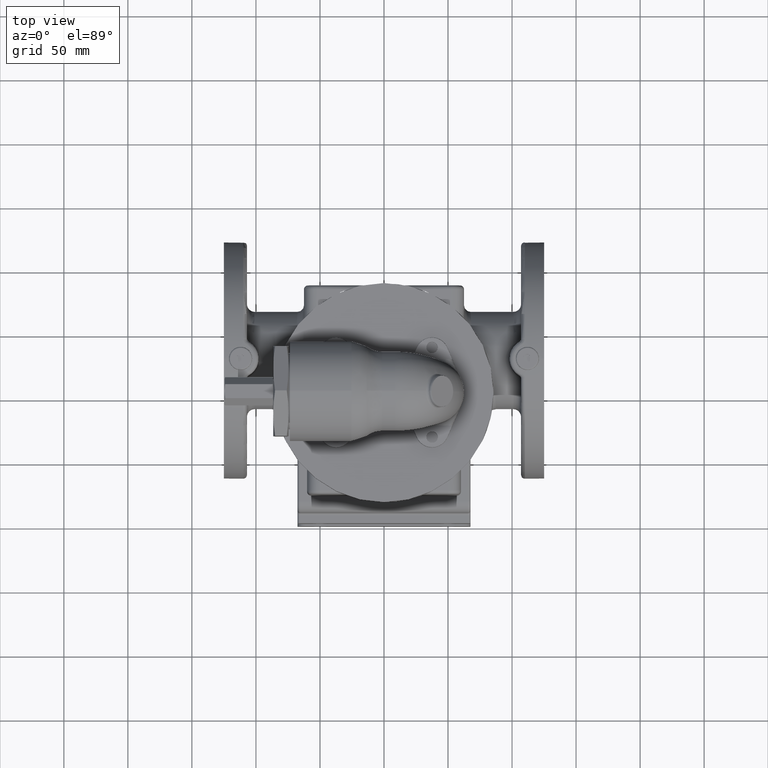
[diagram: clean part render]
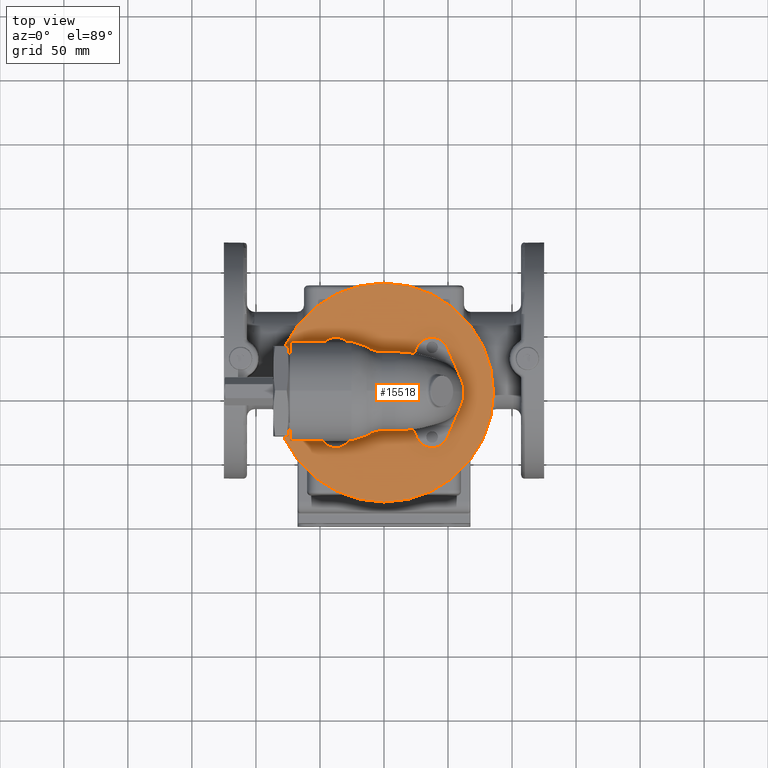
[diagram: same view with one face highlighted and labeled with its STEP entity id]
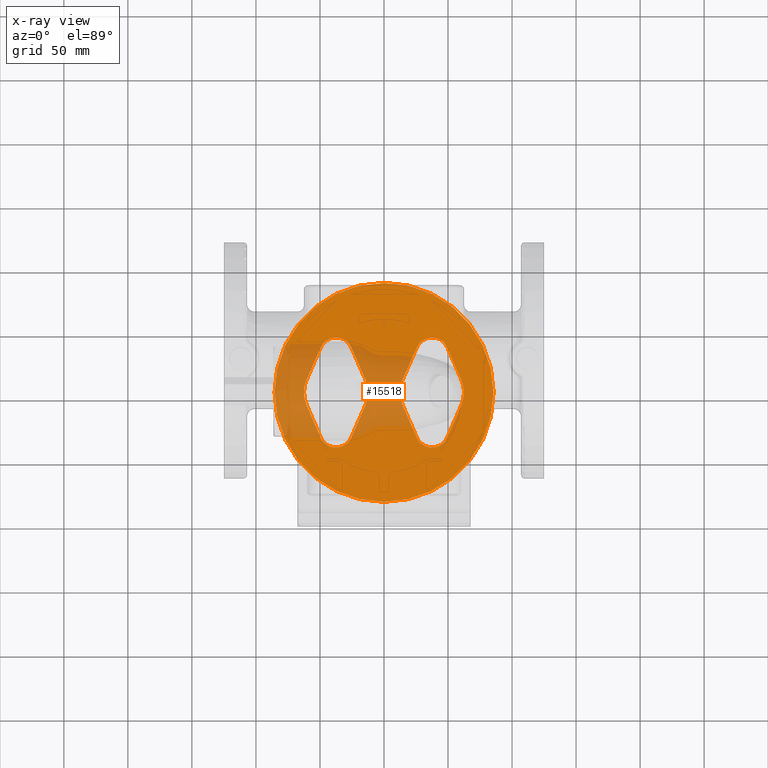
[diagram: x-ray of the same camera — body ghosted, the highlighted face saturated]
A machine part, top view. The second image highlights one B-rep face of the part: STEP entity #15518.
The next image is the same camera in x-ray: the body ghosted, the highlighted face saturated — about 23% of this face is hidden behind the body in this view.
In plain terms, the highlighted planar face has unit normal (0, 0, 1).
Its self-contained STEP definition (entity closure, byte-faithful):
#126=CARTESIAN_POINT('',(-1.957539742586E-14,3.863744265803E-14,1.07E2));
#127=DIRECTION('',(0.E0,0.E0,-1.E0));
#128=DIRECTION('',(0.E0,-1.E0,0.E0));
#129=AXIS2_PLACEMENT_3D('',#126,#127,#128);
#131=CARTESIAN_POINT('',(-1.957539742586E-14,3.863744265803E-14,1.07E2));
#132=DIRECTION('',(0.E0,0.E0,1.E0));
#133=DIRECTION('',(0.E0,-1.E0,0.E0));
#134=AXIS2_PLACEMENT_3D('',#131,#132,#133);
#136=DIRECTION('',(4.E-1,9.165151389912E-1,0.E0));
#137=VECTOR('',#136,2.749545416973E1);
#138=CARTESIAN_POINT('',(-2.558530319311E1,-3.52E1,1.07E2));
#139=LINE('',#138,#137);
#140=CARTESIAN_POINT('',(-3.75E1,3.981926292012E-14,1.07E2));
#141=DIRECTION('',(0.E0,0.E0,1.E0));
#142=DIRECTION('',(9.165151389912E-1,-4.E-1,0.E0));
#143=AXIS2_PLACEMENT_3D('',#140,#141,#142);
#145=DIRECTION('',(-4.E-1,9.165151389912E-1,0.E0));
#146=VECTOR('',#145,2.749545416973E1);
#147=CARTESIAN_POINT('',(-1.458712152522E1,1.E1,1.07E2));
#148=LINE('',#147,#146);
#149=CARTESIAN_POINT('',(-3.75E1,3.E1,1.07E2));
#150=DIRECTION('',(0.E0,0.E0,1.E0));
#151=DIRECTION('',(9.165151389912E-1,4.E-1,0.E0));
#152=AXIS2_PLACEMENT_3D('',#149,#150,#151);
#154=DIRECTION('',(-4.E-1,-9.165151389912E-1,0.E0));
#155=VECTOR('',#154,2.749545416974E1);
#156=CARTESIAN_POINT('',(-4.941469680689E1,3.52E1,1.07E2));
#157=LINE('',#156,#155);
#158=CARTESIAN_POINT('',(-3.75E1,3.981926292012E-14,1.07E2));
#159=DIRECTION('',(0.E0,0.E0,1.E0));
#160=DIRECTION('',(-9.165151389912E-1,4.E-1,0.E0));
#161=AXIS2_PLACEMENT_3D('',#158,#159,#160);
#163=DIRECTION('',(4.E-1,-9.165151389912E-1,0.E0));
#164=VECTOR('',#163,2.749545416974E1);
#165=CARTESIAN_POINT('',(-6.041287847478E1,-1.E1,1.07E2));
#166=LINE('',#165,#164);
#167=CARTESIAN_POINT('',(-3.75E1,-3.E1,1.07E2));
#168=DIRECTION('',(0.E0,0.E0,1.E0));
#169=DIRECTION('',(-9.165151389912E-1,-4.E-1,0.E0));
#170=AXIS2_PLACEMENT_3D('',#167,#168,#169);
#172=DIRECTION('',(4.E-1,9.165151389912E-1,0.E0));
#173=VECTOR('',#172,2.749545416973E1);
#174=CARTESIAN_POINT('',(4.941469680689E1,-3.52E1,1.07E2));
#175=LINE('',#174,#173);
#176=CARTESIAN_POINT('',(3.75E1,3.530035531168E-14,1.07E2));
#177=DIRECTION('',(0.E0,0.E0,1.E0));
#178=DIRECTION('',(9.165151389912E-1,-4.E-1,0.E0));
#179=AXIS2_PLACEMENT_3D('',#176,#177,#178);
#181=DIRECTION('',(-4.E-1,9.165151389912E-1,0.E0));
#182=VECTOR('',#181,2.749545416974E1);
#183=CARTESIAN_POINT('',(6.041287847478E1,1.E1,1.07E2));
#184=LINE('',#183,#182);
#185=CARTESIAN_POINT('',(3.75E1,3.E1,1.07E2));
#186=DIRECTION('',(0.E0,0.E0,1.E0));
#187=DIRECTION('',(9.165151389912E-1,4.E-1,0.E0));
#188=AXIS2_PLACEMENT_3D('',#185,#186,#187);
#190=DIRECTION('',(-4.E-1,-9.165151389912E-1,0.E0));
#191=VECTOR('',#190,2.749545416974E1);
#192=CARTESIAN_POINT('',(2.558530319311E1,3.52E1,1.07E2));
#193=LINE('',#192,#191);
#194=CARTESIAN_POINT('',(3.75E1,3.530035531168E-14,1.07E2));
#195=DIRECTION('',(0.E0,0.E0,1.E0));
#196=DIRECTION('',(-9.165151389912E-1,4.E-1,0.E0));
#197=AXIS2_PLACEMENT_3D('',#194,#195,#196);
#199=DIRECTION('',(4.E-1,-9.165151389912E-1,0.E0));
#200=VECTOR('',#199,2.749545416974E1);
#201=CARTESIAN_POINT('',(1.458712152522E1,-1.E1,1.07E2));
#202=LINE('',#201,#200);
#203=CARTESIAN_POINT('',(3.75E1,-3.E1,1.07E2));
#204=DIRECTION('',(0.E0,0.E0,1.E0));
#205=DIRECTION('',(-9.165151389912E-1,-4.E-1,0.E0));
#206=AXIS2_PLACEMENT_3D('',#203,#204,#205);
#13751=CARTESIAN_POINT('',(-1.957539742586E-14,-8.55E1,1.07E2));
#13752=CARTESIAN_POINT('',(0.E0,8.55E1,1.07E2));
#13753=VERTEX_POINT('',#13751);
#13754=VERTEX_POINT('',#13752);
#14031=CARTESIAN_POINT('',(-2.558530319311E1,-3.52E1,1.07E2));
#14032=CARTESIAN_POINT('',(-1.458712152522E1,-1.E1,1.07E2));
#14033=VERTEX_POINT('',#14031);
#14034=VERTEX_POINT('',#14032);
#14035=CARTESIAN_POINT('',(-6.041287847478E1,1.E1,1.07E2));
#14036=CARTESIAN_POINT('',(-6.041287847478E1,-1.E1,1.07E2));
#14037=VERTEX_POINT('',#14035);
#14038=VERTEX_POINT('',#14036);
#14039=CARTESIAN_POINT('',(-1.458712152522E1,1.E1,1.07E2));
#14040=VERTEX_POINT('',#14039);
#14041=CARTESIAN_POINT('',(-2.558530319311E1,3.52E1,1.07E2));
#14042=VERTEX_POINT('',#14041);
#14043=CARTESIAN_POINT('',(-4.941469680689E1,3.52E1,1.07E2));
#14044=VERTEX_POINT('',#14043);
#14045=CARTESIAN_POINT('',(-4.941469680689E1,-3.52E1,1.07E2));
#14046=VERTEX_POINT('',#14045);
#14047=CARTESIAN_POINT('',(4.941469680689E1,-3.52E1,1.07E2));
#14048=CARTESIAN_POINT('',(6.041287847478E1,-1.E1,1.07E2));
#14049=VERTEX_POINT('',#14047);
#14050=VERTEX_POINT('',#14048);
#14051=CARTESIAN_POINT('',(6.041287847478E1,1.E1,1.07E2));
#14052=VERTEX_POINT('',#14051);
#14053=CARTESIAN_POINT('',(1.458712152522E1,1.E1,1.07E2));
#14054=CARTESIAN_POINT('',(1.458712152522E1,-1.E1,1.07E2));
#14055=VERTEX_POINT('',#14053);
#14056=VERTEX_POINT('',#14054);
#14057=CARTESIAN_POINT('',(4.941469680689E1,3.52E1,1.07E2));
#14058=VERTEX_POINT('',#14057);
#14059=CARTESIAN_POINT('',(2.558530319311E1,3.52E1,1.07E2));
#14060=VERTEX_POINT('',#14059);
#14061=CARTESIAN_POINT('',(2.558530319311E1,-3.52E1,1.07E2));
#14062=VERTEX_POINT('',#14061);
#15472=CARTESIAN_POINT('',(-1.957539742586E-14,3.863744265803E-14,1.07E2));
#15473=DIRECTION('',(0.E0,0.E0,1.E0));
#15474=DIRECTION('',(0.E0,-1.E0,0.E0));
#15475=AXIS2_PLACEMENT_3D('',#15472,#15473,#15474);
#15476=PLANE('',#15475);
#15478=ORIENTED_EDGE('',*,*,#15477,.T.);
#15480=ORIENTED_EDGE('',*,*,#15479,.F.);
#15481=EDGE_LOOP('',(#15478,#15480));
#15482=FACE_OUTER_BOUND('',#15481,.F.);
#15484=ORIENTED_EDGE('',*,*,#15483,.T.);
#15486=ORIENTED_EDGE('',*,*,#15485,.T.);
#15488=ORIENTED_EDGE('',*,*,#15487,.T.);
#15490=ORIENTED_EDGE('',*,*,#15489,.T.);
#15492=ORIENTED_EDGE('',*,*,#15491,.T.);
#15494=ORIENTED_EDGE('',*,*,#15493,.T.);
#15496=ORIENTED_EDGE('',*,*,#15495,.T.);
#15497=ORIENTED_EDGE('',*,*,#15462,.T.);
#15498=EDGE_LOOP('',(#15484,#15486,#15488,#15490,#15492,#15494,#15496,#15497));
#15499=FACE_BOUND('',#15498,.F.);
#15501=ORIENTED_EDGE('',*,*,#15500,.T.);
#15503=ORIENTED_EDGE('',*,*,#15502,.T.);
#15505=ORIENTED_EDGE('',*,*,#15504,.T.);
#15507=ORIENTED_EDGE('',*,*,#15506,.T.);
#15509=ORIENTED_EDGE('',*,*,#15508,.T.);
#15511=ORIENTED_EDGE('',*,*,#15510,.T.);
#15513=ORIENTED_EDGE('',*,*,#15512,.T.);
#15515=ORIENTED_EDGE('',*,*,#15514,.T.);
#15516=EDGE_LOOP('',(#15501,#15503,#15505,#15507,#15509,#15511,#15513,#15515));
#15517=FACE_BOUND('',#15516,.F.);
#15518=ADVANCED_FACE('',(#15482,#15499,#15517),#15476,.T.);
#130=CIRCLE('',#129,8.55E1);
#135=CIRCLE('',#134,8.55E1);
#144=CIRCLE('',#143,2.5E1);
#153=CIRCLE('',#152,1.3E1);
#162=CIRCLE('',#161,2.5E1);
#171=CIRCLE('',#170,1.3E1);
#180=CIRCLE('',#179,2.5E1);
#189=CIRCLE('',#188,1.3E1);
#198=CIRCLE('',#197,2.5E1);
#207=CIRCLE('',#206,1.3E1);
#15462=EDGE_CURVE('',#14046,#14033,#171,.T.);
#15477=EDGE_CURVE('',#13753,#13754,#130,.T.);
#15479=EDGE_CURVE('',#13753,#13754,#135,.T.);
#15483=EDGE_CURVE('',#14033,#14034,#139,.T.);
#15485=EDGE_CURVE('',#14034,#14040,#144,.T.);
#15487=EDGE_CURVE('',#14040,#14042,#148,.T.);
#15489=EDGE_CURVE('',#14042,#14044,#153,.T.);
#15491=EDGE_CURVE('',#14044,#14037,#157,.T.);
#15493=EDGE_CURVE('',#14037,#14038,#162,.T.);
#15495=EDGE_CURVE('',#14038,#14046,#166,.T.);
#15500=EDGE_CURVE('',#14049,#14050,#175,.T.);
#15502=EDGE_CURVE('',#14050,#14052,#180,.T.);
#15504=EDGE_CURVE('',#14052,#14058,#184,.T.);
#15506=EDGE_CURVE('',#14058,#14060,#189,.T.);
#15508=EDGE_CURVE('',#14060,#14055,#193,.T.);
#15510=EDGE_CURVE('',#14055,#14056,#198,.T.);
#15512=EDGE_CURVE('',#14056,#14062,#202,.T.);
#15514=EDGE_CURVE('',#14062,#14049,#207,.T.);